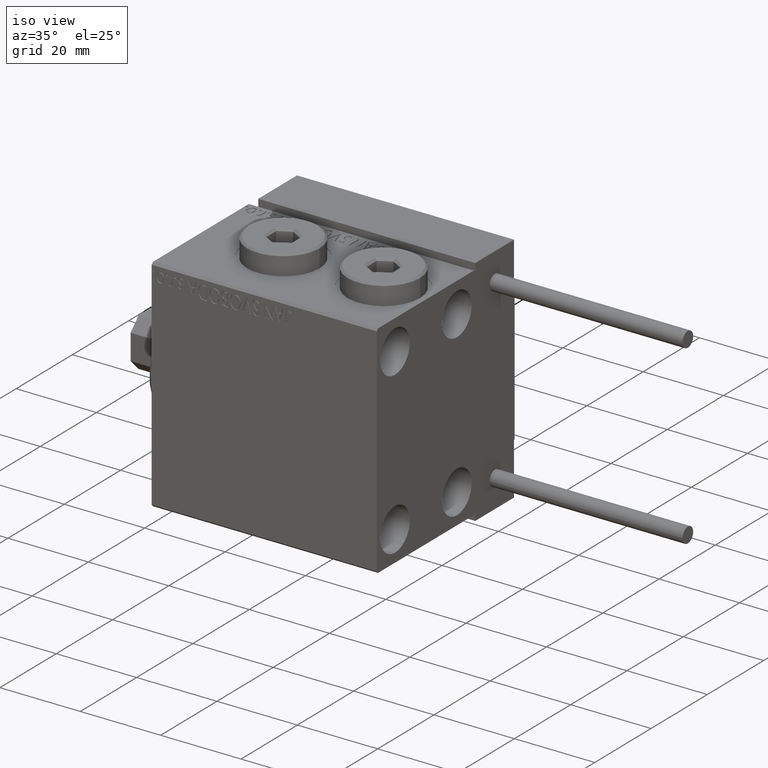
[diagram: clean part render]
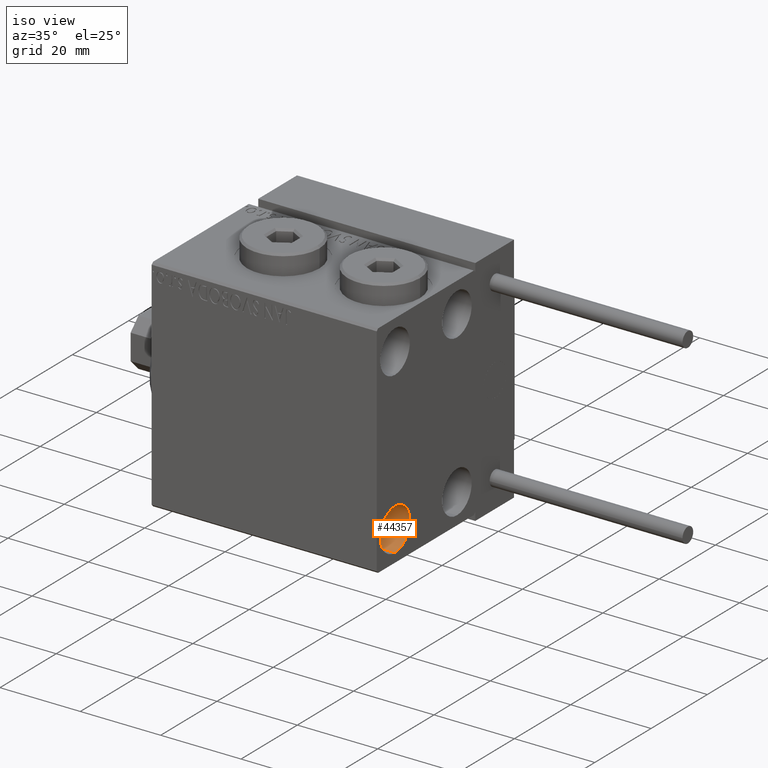
[diagram: same view with one face highlighted and labeled with its STEP entity id]
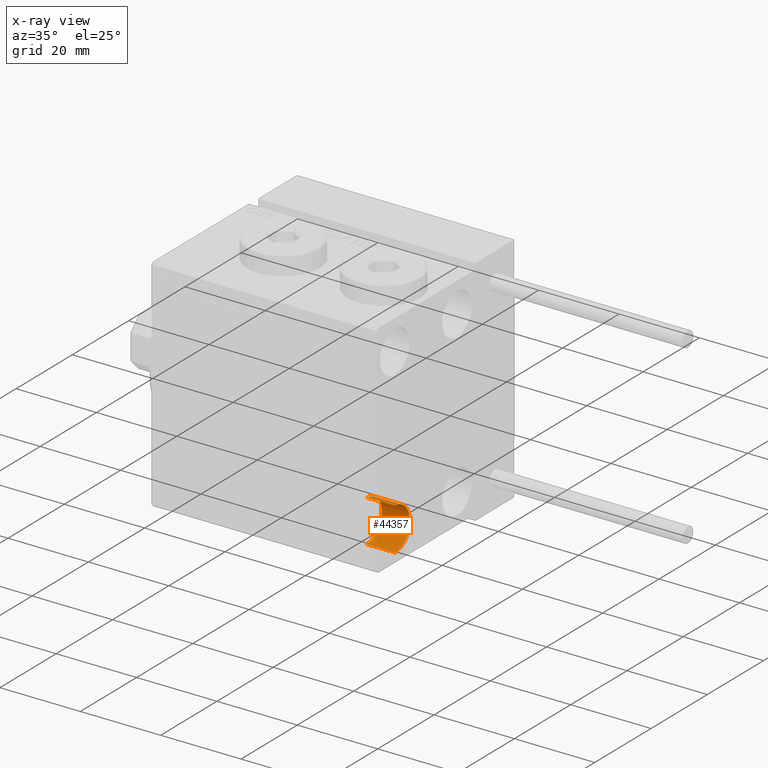
[diagram: x-ray of the same camera — body ghosted, the highlighted face saturated]
A machine part, iso view. The second image highlights one B-rep face of the part: STEP entity #44357.
The next image is the same camera in x-ray: the body ghosted, the highlighted face saturated — about 0% of this face is hidden behind the body in this view.
In plain terms, the highlighted cylindrical surface (edge-blend (fillet) strip) has radius 5.25 mm, axis along (1, 0, 0).
Its self-contained STEP definition (entity closure, byte-faithful):
#799 = VERTEX_POINT ( 'NONE', #34272 ) ;
#1771 = CARTESIAN_POINT ( 'NONE',  ( 49.00000000000000000, -11.00000000000000355, -20.00000000000000000 ) ) ;
#4396 = CYLINDRICAL_SURFACE ( 'NONE', #50722, 5.250000000000000888 ) ;
#7882 = VERTEX_POINT ( 'NONE', #10473 ) ;
#10294 = ORIENTED_EDGE ( 'NONE', *, *, #15912, .F. ) ;
#10473 = CARTESIAN_POINT ( 'NONE',  ( 49.00000000000000000, -11.00000000000000355, -25.25000000000000000 ) ) ;
#11374 = CARTESIAN_POINT ( 'NONE',  ( 56.00000000000000000, -11.00000000000000355, -25.25000000000000000 ) ) ;
#13481 = EDGE_CURVE ( 'NONE', #45642, #799, #24834, .T. ) ;
#15912 = EDGE_CURVE ( 'NONE', #799, #40950, #25815, .T. ) ;
#19606 = ORIENTED_EDGE ( 'NONE', *, *, #31585, .T. ) ;
#20045 = VECTOR ( 'NONE', #24317, 1000.000000000000000 ) ;
#20715 = ORIENTED_EDGE ( 'NONE', *, *, #13481, .F. ) ;
#23171 = EDGE_LOOP ( 'NONE', ( #20715, #19606, #39029, #10294 ) ) ;
#24201 = FACE_OUTER_BOUND ( 'NONE', #23171, .T. ) ;
#24317 = DIRECTION ( 'NONE',  ( 1.000000000000000000, -0.000000000000000000, -0.000000000000000000 ) ) ;
#24834 = LINE ( 'NONE', #37054, #20045 ) ;
#24979 = CARTESIAN_POINT ( 'NONE',  ( 49.00000000000000000, -11.00000000000000355, -20.00000000000000000 ) ) ;
#25241 = DIRECTION ( 'NONE',  ( 0.000000000000000000, 0.000000000000000000, -1.000000000000000000 ) ) ;
#25590 = DIRECTION ( 'NONE',  ( -1.000000000000000000, -0.000000000000000000, -0.000000000000000000 ) ) ;
#25815 = CIRCLE ( 'NONE', #32455, 5.250000000000000888 ) ;
#27906 = AXIS2_PLACEMENT_3D ( 'NONE', #1771, #37955, #49966 ) ;
#29488 = CARTESIAN_POINT ( 'NONE',  ( 56.00000000000000000, -11.00000000000000355, -20.00000000000000000 ) ) ;
#31585 = EDGE_CURVE ( 'NONE', #45642, #7882, #43721, .T. ) ;
#32455 = AXIS2_PLACEMENT_3D ( 'NONE', #29488, #25590, #41453 ) ;
#33019 = CARTESIAN_POINT ( 'NONE',  ( 49.00000000000000000, -11.00000000000000355, -14.75000000000000000 ) ) ;
#33152 = CARTESIAN_POINT ( 'NONE',  ( 49.00000000000000000, -11.00000000000000355, -25.25000000000000000 ) ) ;
#33184 = VECTOR ( 'NONE', #49061, 1000.000000000000000 ) ;
#34272 = CARTESIAN_POINT ( 'NONE',  ( 56.00000000000000000, -11.00000000000000355, -14.75000000000000000 ) ) ;
#37054 = CARTESIAN_POINT ( 'NONE',  ( 49.00000000000000000, -11.00000000000000355, -14.75000000000000000 ) ) ;
#37955 = DIRECTION ( 'NONE',  ( -1.000000000000000000, -0.000000000000000000, -0.000000000000000000 ) ) ;
#39029 = ORIENTED_EDGE ( 'NONE', *, *, #42753, .T. ) ;
#40950 = VERTEX_POINT ( 'NONE', #11374 ) ;
#41453 = DIRECTION ( 'NONE',  ( 0.000000000000000000, 0.000000000000000000, 1.000000000000000000 ) ) ;
#42753 = EDGE_CURVE ( 'NONE', #7882, #40950, #48289, .T. ) ;
#43721 = CIRCLE ( 'NONE', #27906, 5.250000000000000888 ) ;
#44357 = ADVANCED_FACE ( 'NONE', ( #24201 ), #4396, .F. ) ;
#44763 = DIRECTION ( 'NONE',  ( 1.000000000000000000, -0.000000000000000000, -0.000000000000000000 ) ) ;
#45642 = VERTEX_POINT ( 'NONE', #33019 ) ;
#48289 = LINE ( 'NONE', #33152, #33184 ) ;
#49061 = DIRECTION ( 'NONE',  ( 1.000000000000000000, -0.000000000000000000, -0.000000000000000000 ) ) ;
#49966 = DIRECTION ( 'NONE',  ( 0.000000000000000000, 0.000000000000000000, 1.000000000000000000 ) ) ;
#50722 = AXIS2_PLACEMENT_3D ( 'NONE', #24979, #44763, #25241 ) ;